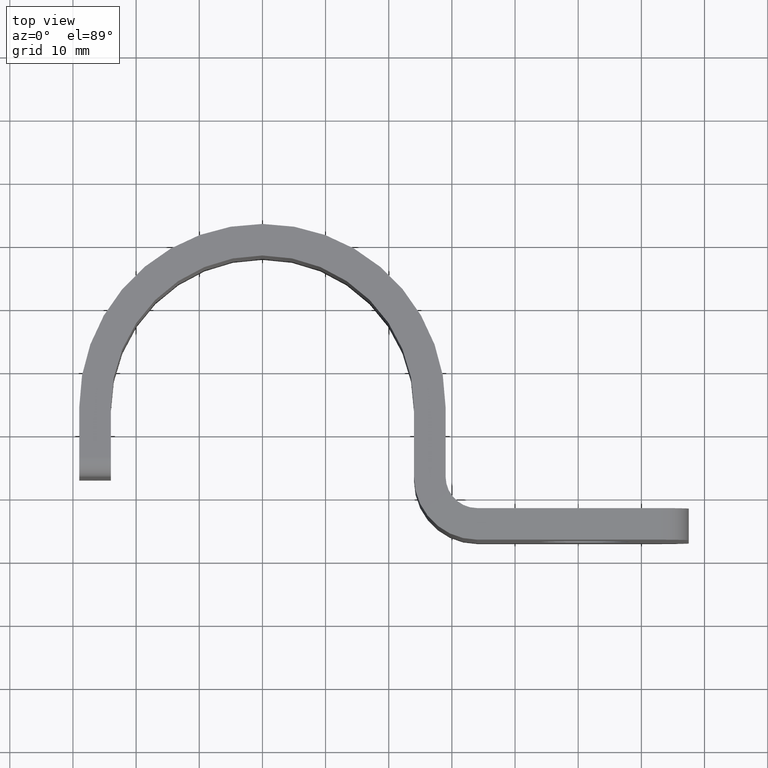
[diagram: clean part render]
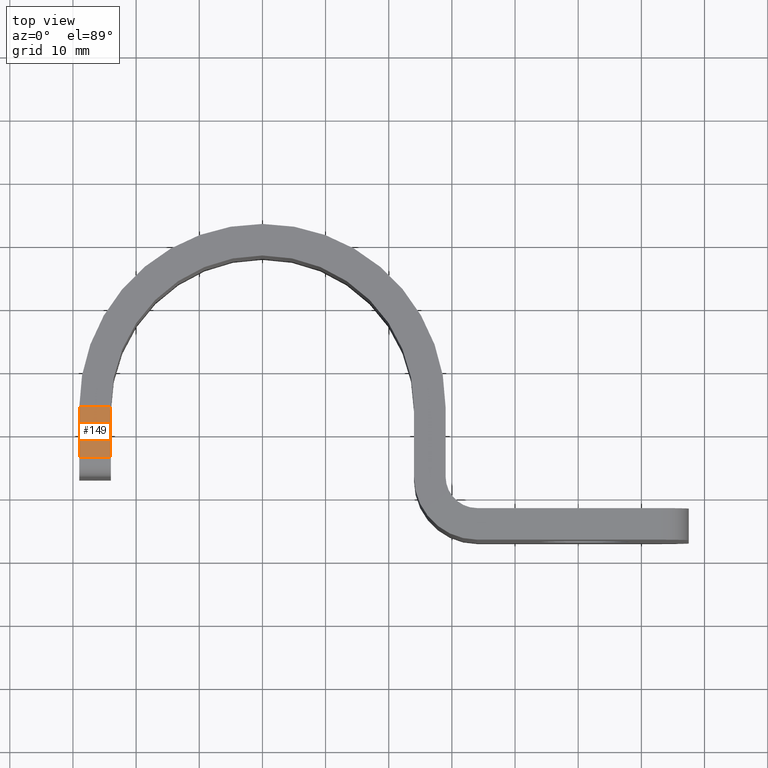
[diagram: same view with one face highlighted and labeled with its STEP entity id]
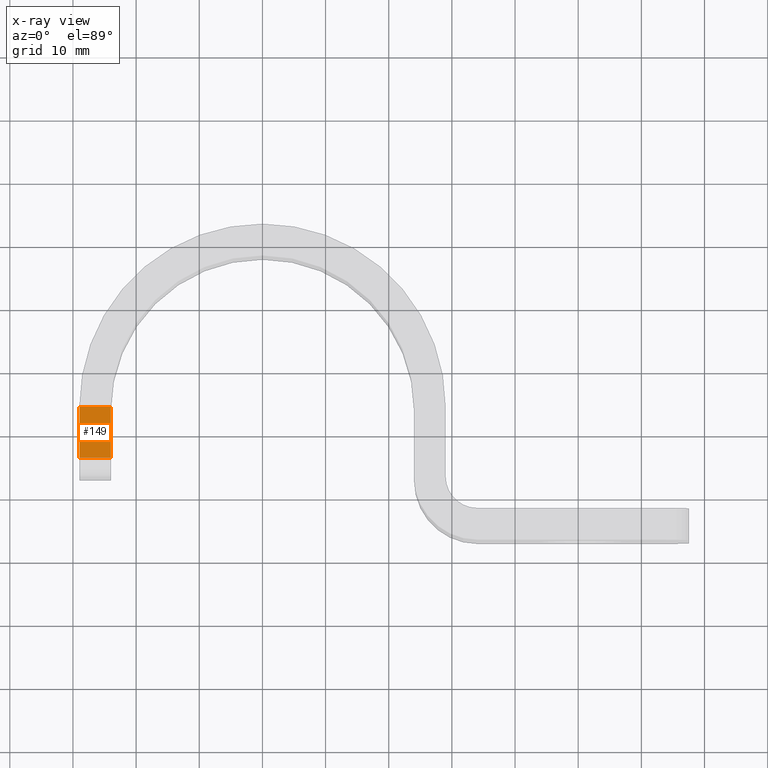
[diagram: x-ray of the same camera — body ghosted, the highlighted face saturated]
A machine part, top view. The second image highlights one B-rep face of the part: STEP entity #149.
The next image is the same camera in x-ray: the body ghosted, the highlighted face saturated — about 0% of this face is hidden behind the body in this view.
In plain terms, the highlighted planar face has unit normal (0, 0, 1).
Its self-contained STEP definition (entity closure, byte-faithful):
#27 = EDGE_CURVE ( 'NONE', #607, #278, #694, .T. ) ;
#48 = ORIENTED_EDGE ( 'NONE', *, *, #27, .T. ) ;
#122 = FACE_OUTER_BOUND ( 'NONE', #670, .T. ) ;
#126 = CARTESIAN_POINT ( 'NONE',  ( -28.99999999999947065, 15.99999999999979217, 20.00000000000001776 ) ) ;
#129 = EDGE_CURVE ( 'NONE', #603, #163, #780, .T. ) ;
#149 = ADVANCED_FACE ( 'NONE', ( #122 ), #445, .T. ) ;
#156 = ORIENTED_EDGE ( 'NONE', *, *, #681, .F. ) ;
#163 = VERTEX_POINT ( 'NONE', #778 ) ;
#177 = DIRECTION ( 'NONE',  ( 1.000000000000000000, 3.330669073875468142E-16, -1.110223024625156047E-16 ) ) ;
#196 = DIRECTION ( 'NONE',  ( -1.000000000000000000, 6.106226635438355056E-16, 1.387778780781444443E-16 ) ) ;
#206 = CARTESIAN_POINT ( 'NONE',  ( -24.00000000000002132, 2.999999999999891642, 20.00000000000001776 ) ) ;
#252 = CARTESIAN_POINT ( 'NONE',  ( 29.00000000000035882, 24.00000000000024158, 19.99999999999868550 ) ) ;
#267 = EDGE_CURVE ( 'NONE', #278, #603, #598, .T. ) ;
#276 = VECTOR ( 'NONE', #196, 1000.000000000000000 ) ;
#278 = VERTEX_POINT ( 'NONE', #734 ) ;
#334 = DIRECTION ( 'NONE',  ( -5.551115123125790098E-17, 1.000000000000000000, 1.110223024625158020E-16 ) ) ;
#360 = ORIENTED_EDGE ( 'NONE', *, *, #129, .T. ) ;
#382 = CARTESIAN_POINT ( 'NONE',  ( -23.99999999999957723, 23.99999999999980105, 19.99999999999957367 ) ) ;
#386 = AXIS2_PLACEMENT_3D ( 'NONE', #252, #840, #455 ) ;
#388 = VECTOR ( 'NONE', #709, 1000.000000000000000 ) ;
#445 = PLANE ( 'NONE',  #386 ) ;
#455 = DIRECTION ( 'NONE',  ( 1.000000000000000000, 1.665334536937733332E-16, -1.110223024625155554E-16 ) ) ;
#520 = LINE ( 'NONE', #771, #388 ) ;
#536 = ORIENTED_EDGE ( 'NONE', *, *, #267, .T. ) ;
#551 = VECTOR ( 'NONE', #177, 1000.000000000000000 ) ;
#552 = VECTOR ( 'NONE', #334, 1000.000000000000000 ) ;
#598 = LINE ( 'NONE', #206, #552 ) ;
#603 = VERTEX_POINT ( 'NONE', #382 ) ;
#607 = VERTEX_POINT ( 'NONE', #126 ) ;
#637 = CARTESIAN_POINT ( 'NONE',  ( -23.99999999999957723, 16.00000000000001421, 20.00000000000046185 ) ) ;
#670 = EDGE_LOOP ( 'NONE', ( #156, #48, #536, #360 ) ) ;
#681 = EDGE_CURVE ( 'NONE', #607, #163, #520, .T. ) ;
#694 = LINE ( 'NONE', #637, #551 ) ;
#701 = CARTESIAN_POINT ( 'NONE',  ( -23.99999999999957723, 23.99999999999980105, 19.99999999999957367 ) ) ;
#709 = DIRECTION ( 'NONE',  ( -5.551115123125790098E-17, 1.000000000000000000, 1.110223024625158020E-16 ) ) ;
#734 = CARTESIAN_POINT ( 'NONE',  ( -23.99999999999957723, 16.00000000000001421, 20.00000000000046185 ) ) ;
#771 = CARTESIAN_POINT ( 'NONE',  ( -28.99999999999947065, 2.999999999999891642, 19.99999999999957367 ) ) ;
#778 = CARTESIAN_POINT ( 'NONE',  ( -28.99999999999947065, 24.00000000000068923, 20.00000000000046185 ) ) ;
#780 = LINE ( 'NONE', #701, #276 ) ;
#840 = DIRECTION ( 'NONE',  ( 1.110223024625155185E-16, 1.942890293094023946E-16, 1.000000000000000000 ) ) ;